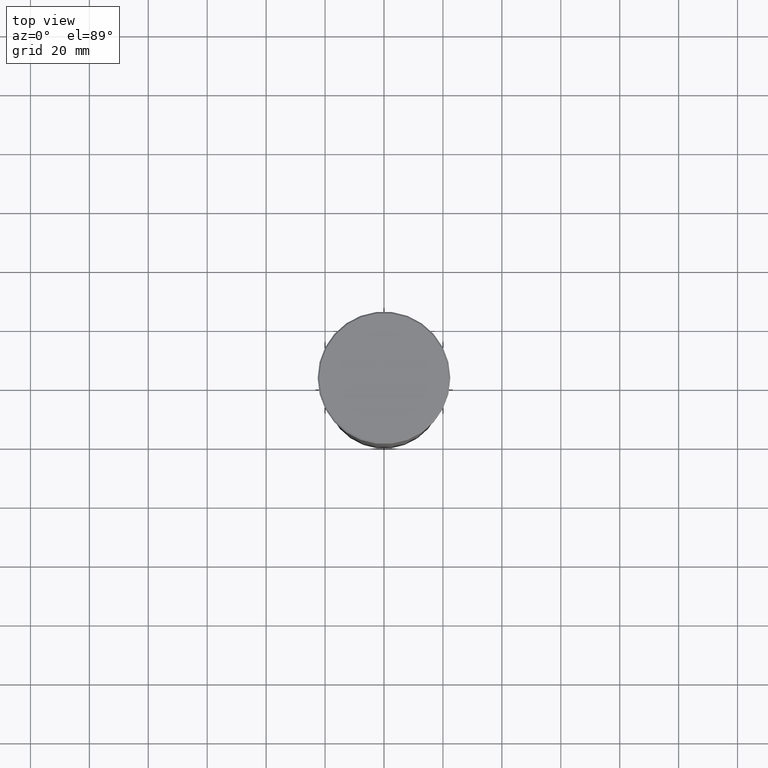
[diagram: clean part render]
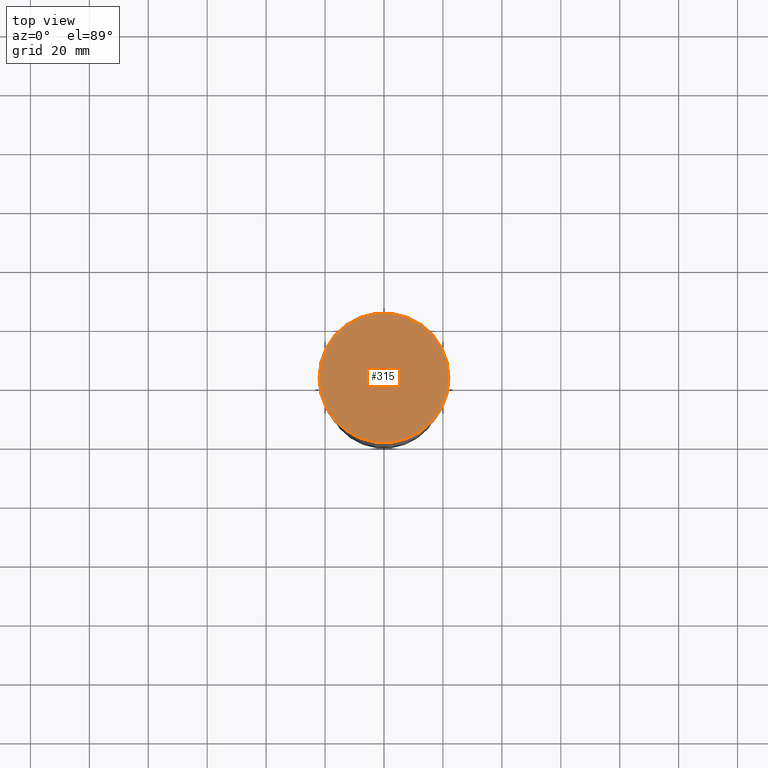
[diagram: same view with one face highlighted and labeled with its STEP entity id]
A machine part, top view. The second image highlights one B-rep face of the part: STEP entity #315.
In plain terms, the highlighted planar face has unit normal (0, -0, 1).
Its self-contained STEP definition (entity closure, byte-faithful):
#20 = ORIENTED_EDGE ( 'NONE', *, *, #792, .T. ) ;
#39 = CARTESIAN_POINT ( 'NONE',  ( -22.00000000000000711, 0.000000000000000000, 0.000000000000000000 ) ) ;
#49 = VERTEX_POINT ( 'NONE', #39 ) ;
#60 = DIRECTION ( 'NONE',  ( -0.000000000000000000, -0.000000000000000000, 1.000000000000000000 ) ) ;
#64 = CIRCLE ( 'NONE', #682, 22.00000000000000711 ) ;
#166 = CARTESIAN_POINT ( 'NONE',  ( 0.000000000000000000, 0.000000000000000000, 0.000000000000000000 ) ) ;
#315 = ADVANCED_FACE ( 'NONE', ( #511 ), #342, .T. ) ;
#342 = PLANE ( 'NONE',  #762 ) ;
#415 = DIRECTION ( 'NONE',  ( -0.000000000000000000, -0.000000000000000000, 1.000000000000000000 ) ) ;
#425 = DIRECTION ( 'NONE',  ( 1.000000000000000000, 0.000000000000000000, 0.000000000000000000 ) ) ;
#511 = FACE_OUTER_BOUND ( 'NONE', #844, .T. ) ;
#518 = CIRCLE ( 'NONE', #731, 22.00000000000000711 ) ;
#610 = CARTESIAN_POINT ( 'NONE',  ( 22.00000000000000711, 2.724839128102860991E-15, 0.000000000000000000 ) ) ;
#682 = AXIS2_PLACEMENT_3D ( 'NONE', #733, #415, #900 ) ;
#725 = DIRECTION ( 'NONE',  ( 1.000000000000000000, 0.000000000000000000, 0.000000000000000000 ) ) ;
#731 = AXIS2_PLACEMENT_3D ( 'NONE', #878, #60, #725 ) ;
#733 = CARTESIAN_POINT ( 'NONE',  ( 0.000000000000000000, 0.000000000000000000, 0.000000000000000000 ) ) ;
#762 = AXIS2_PLACEMENT_3D ( 'NONE', #166, #1060, #425 ) ;
#792 = EDGE_CURVE ( 'NONE', #49, #997, #518, .T. ) ;
#844 = EDGE_LOOP ( 'NONE', ( #20, #926 ) ) ;
#854 = EDGE_CURVE ( 'NONE', #997, #49, #64, .T. ) ;
#878 = CARTESIAN_POINT ( 'NONE',  ( 0.000000000000000000, 0.000000000000000000, 0.000000000000000000 ) ) ;
#900 = DIRECTION ( 'NONE',  ( 1.000000000000000000, 0.000000000000000000, 0.000000000000000000 ) ) ;
#926 = ORIENTED_EDGE ( 'NONE', *, *, #854, .T. ) ;
#997 = VERTEX_POINT ( 'NONE', #610 ) ;
#1060 = DIRECTION ( 'NONE',  ( 0.000000000000000000, -0.000000000000000000, 1.000000000000000000 ) ) ;